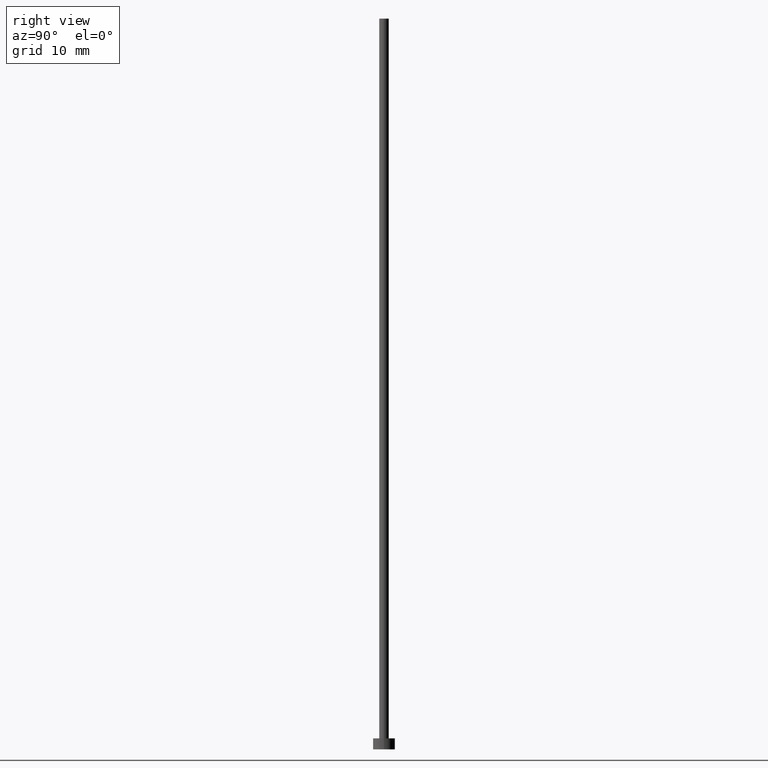
[diagram: clean part render]
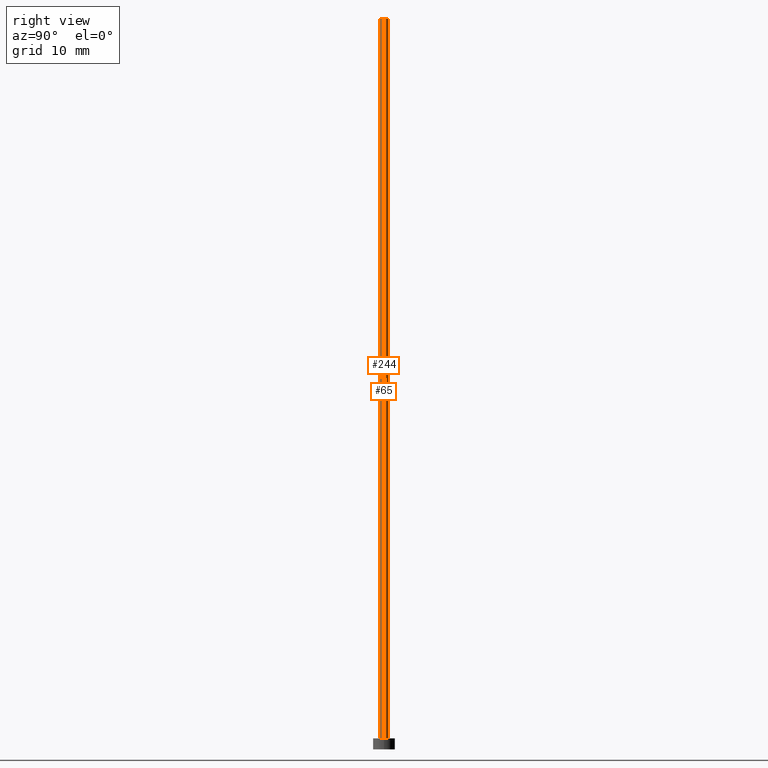
[diagram: same view with one multi-face feature highlighted, each face labeled with its STEP entity id]
A machine part, right view. The highlighted faces form ONE feature: a constant-radius fillet chain: 2 tangent blend faces with common blend radius 0.65 mm. The faces share edges in the B-rep.
Their STEP definitions:
[1] entity #65 (Cylinder):
#2 = LINE ( 'NONE', #107, #121 ) ;
#7 = DIRECTION ( 'NONE',  ( -0.000000000000000000, -0.000000000000000000, -1.000000000000000000 ) ) ;
#13 = ORIENTED_EDGE ( 'NONE', *, *, #221, .T. ) ;
#17 = CARTESIAN_POINT ( 'NONE',  ( -0.6500000000000000222, 0.000000000000000000, 1.500000000000000000 ) ) ;
#26 = EDGE_CURVE ( 'NONE', #115, #132, #2, .T. ) ;
#30 = EDGE_CURVE ( 'NONE', #222, #243, #145, .T. ) ;
#36 = DIRECTION ( 'NONE',  ( -1.000000000000000000, 0.000000000000000000, 0.000000000000000000 ) ) ;
#43 = CARTESIAN_POINT ( 'NONE',  ( -0.6500000000000000222, 0.000000000000000000, 100.0000000000000000 ) ) ;
#58 = DIRECTION ( 'NONE',  ( -0.000000000000000000, -0.000000000000000000, -1.000000000000000000 ) ) ;
#59 = CARTESIAN_POINT ( 'NONE',  ( -0.6500000000000000222, 0.000000000000000000, 100.0000000000000000 ) ) ;
#62 = AXIS2_PLACEMENT_3D ( 'NONE', #252, #78, #162 ) ;
#65 = ADVANCED_FACE ( 'NONE', ( #195 ), #193, .T. ) ;
#67 = DIRECTION ( 'NONE',  ( 1.000000000000000000, 0.000000000000000000, 0.000000000000000000 ) ) ;
#68 = CARTESIAN_POINT ( 'NONE',  ( 0.000000000000000000, 0.000000000000000000, 1.500000000000000000 ) ) ;
#78 = DIRECTION ( 'NONE',  ( 0.000000000000000000, 0.000000000000000000, 1.000000000000000000 ) ) ;
#79 = CIRCLE ( 'NONE', #62, 0.6500000000000000222 ) ;
#85 = AXIS2_PLACEMENT_3D ( 'NONE', #68, #87, #67 ) ;
#87 = DIRECTION ( 'NONE',  ( 0.000000000000000000, 0.000000000000000000, 1.000000000000000000 ) ) ;
#96 = ORIENTED_EDGE ( 'NONE', *, *, #26, .T. ) ;
#103 = CARTESIAN_POINT ( 'NONE',  ( 0.6500000000000000222, 7.960204194457795477E-17, 1.500000000000000000 ) ) ;
#107 = CARTESIAN_POINT ( 'NONE',  ( 0.6500000000000000222, 7.960204194457795477E-17, 100.0000000000000000 ) ) ;
#115 = VERTEX_POINT ( 'NONE', #149 ) ;
#120 = EDGE_LOOP ( 'NONE', ( #245, #96, #13, #206 ) ) ;
#121 = VECTOR ( 'NONE', #226, 1000.000000000000000 ) ;
#127 = CIRCLE ( 'NONE', #85, 0.6500000000000000222 ) ;
#132 = VERTEX_POINT ( 'NONE', #103 ) ;
#145 = LINE ( 'NONE', #59, #152 ) ;
#149 = CARTESIAN_POINT ( 'NONE',  ( 0.6500000000000000222, 7.960204194457795477E-17, 100.0000000000000000 ) ) ;
#152 = VECTOR ( 'NONE', #58, 1000.000000000000000 ) ;
#162 = DIRECTION ( 'NONE',  ( 1.000000000000000000, 0.000000000000000000, 0.000000000000000000 ) ) ;
#185 = EDGE_CURVE ( 'NONE', #115, #222, #79, .T. ) ;
#193 = CYLINDRICAL_SURFACE ( 'NONE', #204, 0.6500000000000000222 ) ;
#195 = FACE_OUTER_BOUND ( 'NONE', #120, .T. ) ;
#204 = AXIS2_PLACEMENT_3D ( 'NONE', #210, #7, #36 ) ;
#206 = ORIENTED_EDGE ( 'NONE', *, *, #30, .F. ) ;
#210 = CARTESIAN_POINT ( 'NONE',  ( 0.000000000000000000, 0.000000000000000000, 100.0000000000000000 ) ) ;
#221 = EDGE_CURVE ( 'NONE', #132, #243, #127, .T. ) ;
#222 = VERTEX_POINT ( 'NONE', #43 ) ;
#226 = DIRECTION ( 'NONE',  ( -0.000000000000000000, -0.000000000000000000, -1.000000000000000000 ) ) ;
#243 = VERTEX_POINT ( 'NONE', #17 ) ;
#245 = ORIENTED_EDGE ( 'NONE', *, *, #185, .F. ) ;
#252 = CARTESIAN_POINT ( 'NONE',  ( 0.000000000000000000, 0.000000000000000000, 100.0000000000000000 ) ) ;
[2] entity #244 (Cylinder):
#2 = LINE ( 'NONE', #107, #121 ) ;
#4 = DIRECTION ( 'NONE',  ( 0.000000000000000000, 0.000000000000000000, 1.000000000000000000 ) ) ;
#17 = CARTESIAN_POINT ( 'NONE',  ( -0.6500000000000000222, 0.000000000000000000, 1.500000000000000000 ) ) ;
#26 = EDGE_CURVE ( 'NONE', #115, #132, #2, .T. ) ;
#30 = EDGE_CURVE ( 'NONE', #222, #243, #145, .T. ) ;
#37 = CIRCLE ( 'NONE', #199, 0.6500000000000000222 ) ;
#43 = CARTESIAN_POINT ( 'NONE',  ( -0.6500000000000000222, 0.000000000000000000, 100.0000000000000000 ) ) ;
#47 = DIRECTION ( 'NONE',  ( -0.000000000000000000, -0.000000000000000000, -1.000000000000000000 ) ) ;
#48 = ORIENTED_EDGE ( 'NONE', *, *, #30, .T. ) ;
#57 = EDGE_LOOP ( 'NONE', ( #235, #161, #48, #190 ) ) ;
#58 = DIRECTION ( 'NONE',  ( -0.000000000000000000, -0.000000000000000000, -1.000000000000000000 ) ) ;
#59 = CARTESIAN_POINT ( 'NONE',  ( -0.6500000000000000222, 0.000000000000000000, 100.0000000000000000 ) ) ;
#91 = AXIS2_PLACEMENT_3D ( 'NONE', #173, #4, #248 ) ;
#103 = CARTESIAN_POINT ( 'NONE',  ( 0.6500000000000000222, 7.960204194457795477E-17, 1.500000000000000000 ) ) ;
#107 = CARTESIAN_POINT ( 'NONE',  ( 0.6500000000000000222, 7.960204194457795477E-17, 100.0000000000000000 ) ) ;
#110 = FACE_OUTER_BOUND ( 'NONE', #57, .T. ) ;
#115 = VERTEX_POINT ( 'NONE', #149 ) ;
#121 = VECTOR ( 'NONE', #226, 1000.000000000000000 ) ;
#131 = DIRECTION ( 'NONE',  ( -1.000000000000000000, 0.000000000000000000, 0.000000000000000000 ) ) ;
#132 = VERTEX_POINT ( 'NONE', #103 ) ;
#145 = LINE ( 'NONE', #59, #152 ) ;
#147 = EDGE_CURVE ( 'NONE', #222, #115, #208, .T. ) ;
#149 = CARTESIAN_POINT ( 'NONE',  ( 0.6500000000000000222, 7.960204194457795477E-17, 100.0000000000000000 ) ) ;
#152 = VECTOR ( 'NONE', #58, 1000.000000000000000 ) ;
#153 = AXIS2_PLACEMENT_3D ( 'NONE', #241, #47, #131 ) ;
#159 = EDGE_CURVE ( 'NONE', #243, #132, #37, .T. ) ;
#161 = ORIENTED_EDGE ( 'NONE', *, *, #147, .F. ) ;
#168 = DIRECTION ( 'NONE',  ( 1.000000000000000000, 0.000000000000000000, 0.000000000000000000 ) ) ;
#173 = CARTESIAN_POINT ( 'NONE',  ( 0.000000000000000000, 0.000000000000000000, 100.0000000000000000 ) ) ;
#190 = ORIENTED_EDGE ( 'NONE', *, *, #159, .T. ) ;
#191 = DIRECTION ( 'NONE',  ( 0.000000000000000000, 0.000000000000000000, 1.000000000000000000 ) ) ;
#199 = AXIS2_PLACEMENT_3D ( 'NONE', #230, #191, #168 ) ;
#208 = CIRCLE ( 'NONE', #91, 0.6500000000000000222 ) ;
#222 = VERTEX_POINT ( 'NONE', #43 ) ;
#226 = DIRECTION ( 'NONE',  ( -0.000000000000000000, -0.000000000000000000, -1.000000000000000000 ) ) ;
#230 = CARTESIAN_POINT ( 'NONE',  ( 0.000000000000000000, 0.000000000000000000, 1.500000000000000000 ) ) ;
#234 = CYLINDRICAL_SURFACE ( 'NONE', #153, 0.6500000000000000222 ) ;
#235 = ORIENTED_EDGE ( 'NONE', *, *, #26, .F. ) ;
#241 = CARTESIAN_POINT ( 'NONE',  ( 0.000000000000000000, 0.000000000000000000, 100.0000000000000000 ) ) ;
#243 = VERTEX_POINT ( 'NONE', #17 ) ;
#244 = ADVANCED_FACE ( 'NONE', ( #110 ), #234, .T. ) ;
#248 = DIRECTION ( 'NONE',  ( 1.000000000000000000, 0.000000000000000000, 0.000000000000000000 ) ) ;